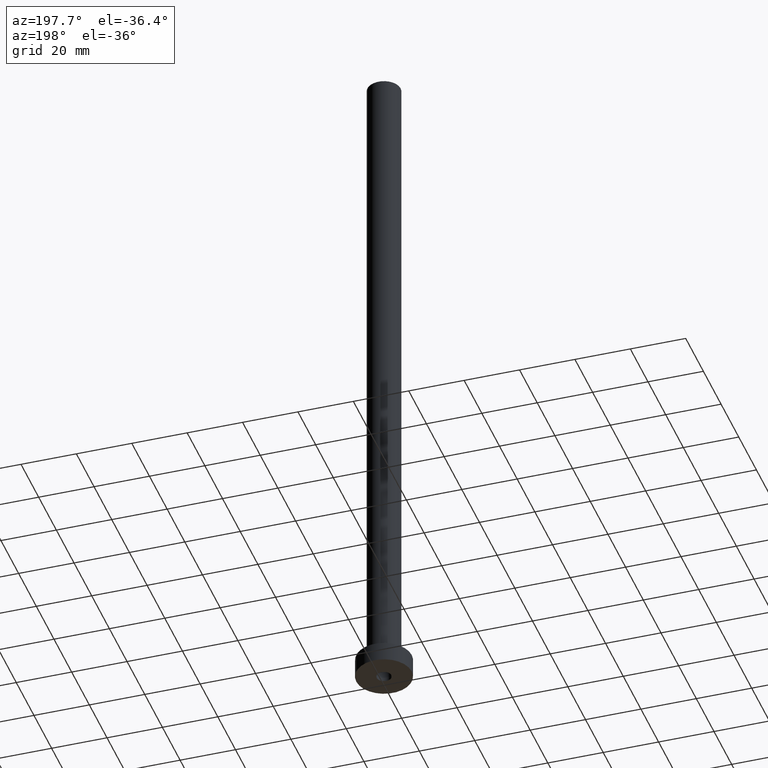
[diagram: clean part render]
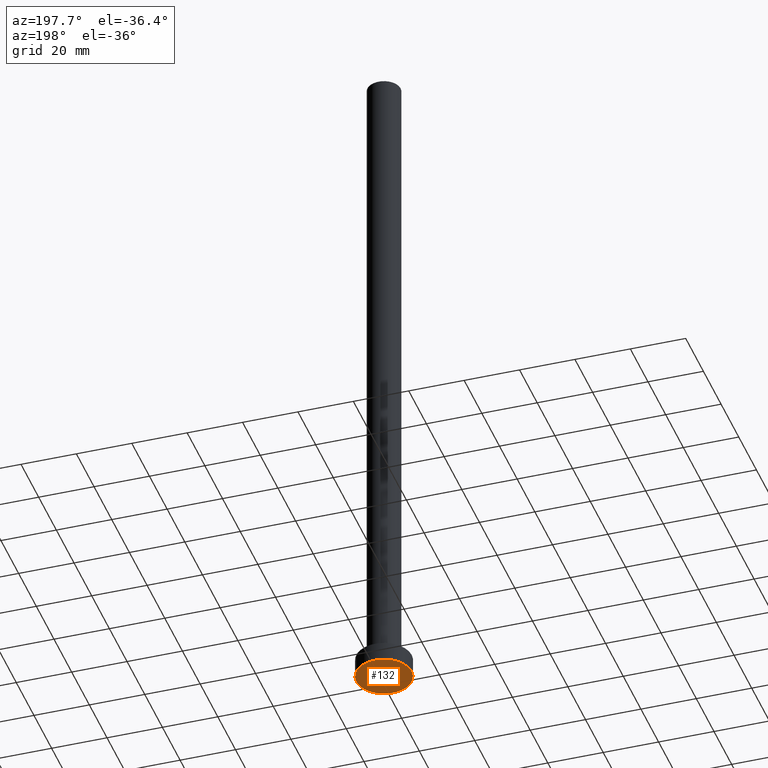
[diagram: same view with one face highlighted and labeled with its STEP entity id]
A machine part, auxiliary view. The second image highlights one B-rep face of the part: STEP entity #132.
In plain terms, the highlighted planar face has unit normal (0, 0, 1).
Its self-contained STEP definition (entity closure, byte-faithful):
#28 = AXIS2_PLACEMENT_3D ( 'NONE', #30, #174, #215 ) ;
#30 = CARTESIAN_POINT ( 'NONE',  ( 0.000000000000000000, 0.000000000000000000, 0.000000000000000000 ) ) ;
#33 = EDGE_LOOP ( 'NONE', ( #36, #125 ) ) ;
#36 = ORIENTED_EDGE ( 'NONE', *, *, #37, .F. ) ;
#37 = EDGE_CURVE ( 'NONE', #251, #265, #68, .T. ) ;
#43 = AXIS2_PLACEMENT_3D ( 'NONE', #455, #344, #268 ) ;
#47 = EDGE_LOOP ( 'NONE', ( #156, #219 ) ) ;
#55 = AXIS2_PLACEMENT_3D ( 'NONE', #73, #425, #75 ) ;
#60 = DIRECTION ( 'NONE',  ( 1.000000000000000000, 0.000000000000000000, 0.000000000000000000 ) ) ;
#63 = CIRCLE ( 'NONE', #317, 10.00000000000000000 ) ;
#68 = CIRCLE ( 'NONE', #43, 2.649999999999999911 ) ;
#69 = CARTESIAN_POINT ( 'NONE',  ( 2.649999999999999911, 3.245314017740485962E-16, 0.000000000000000000 ) ) ;
#73 = CARTESIAN_POINT ( 'NONE',  ( 0.000000000000000000, 0.000000000000000000, 0.000000000000000000 ) ) ;
#74 = EDGE_CURVE ( 'NONE', #265, #251, #112, .T. ) ;
#75 = DIRECTION ( 'NONE',  ( 1.000000000000000000, 0.000000000000000000, 0.000000000000000000 ) ) ;
#85 = CIRCLE ( 'NONE', #55, 10.00000000000000000 ) ;
#112 = CIRCLE ( 'NONE', #197, 2.649999999999999911 ) ;
#125 = ORIENTED_EDGE ( 'NONE', *, *, #74, .F. ) ;
#132 = ADVANCED_FACE ( 'NONE', ( #162, #419 ), #391, .F. ) ;
#133 = CARTESIAN_POINT ( 'NONE',  ( 0.000000000000000000, 0.000000000000000000, 0.000000000000000000 ) ) ;
#156 = ORIENTED_EDGE ( 'NONE', *, *, #444, .F. ) ;
#158 = CARTESIAN_POINT ( 'NONE',  ( -10.00000000000000000, 0.000000000000000000, 0.000000000000000000 ) ) ;
#162 = FACE_BOUND ( 'NONE', #33, .T. ) ;
#173 = CARTESIAN_POINT ( 'NONE',  ( 10.00000000000000000, 1.224646799147353256E-15, 0.000000000000000000 ) ) ;
#174 = DIRECTION ( 'NONE',  ( 0.000000000000000000, 0.000000000000000000, 1.000000000000000000 ) ) ;
#197 = AXIS2_PLACEMENT_3D ( 'NONE', #133, #272, #60 ) ;
#203 = CARTESIAN_POINT ( 'NONE',  ( -2.649999999999999911, 0.000000000000000000, 0.000000000000000000 ) ) ;
#206 = EDGE_CURVE ( 'NONE', #294, #433, #85, .T. ) ;
#215 = DIRECTION ( 'NONE',  ( 1.000000000000000000, 0.000000000000000000, -0.000000000000000000 ) ) ;
#219 = ORIENTED_EDGE ( 'NONE', *, *, #206, .F. ) ;
#251 = VERTEX_POINT ( 'NONE', #203 ) ;
#265 = VERTEX_POINT ( 'NONE', #69 ) ;
#268 = DIRECTION ( 'NONE',  ( 1.000000000000000000, 0.000000000000000000, 0.000000000000000000 ) ) ;
#272 = DIRECTION ( 'NONE',  ( -0.000000000000000000, -0.000000000000000000, -1.000000000000000000 ) ) ;
#294 = VERTEX_POINT ( 'NONE', #173 ) ;
#297 = DIRECTION ( 'NONE',  ( 0.000000000000000000, 0.000000000000000000, 1.000000000000000000 ) ) ;
#317 = AXIS2_PLACEMENT_3D ( 'NONE', #398, #297, #441 ) ;
#344 = DIRECTION ( 'NONE',  ( -0.000000000000000000, -0.000000000000000000, -1.000000000000000000 ) ) ;
#391 = PLANE ( 'NONE',  #28 ) ;
#398 = CARTESIAN_POINT ( 'NONE',  ( 0.000000000000000000, 0.000000000000000000, 0.000000000000000000 ) ) ;
#419 = FACE_OUTER_BOUND ( 'NONE', #47, .T. ) ;
#425 = DIRECTION ( 'NONE',  ( 0.000000000000000000, 0.000000000000000000, 1.000000000000000000 ) ) ;
#433 = VERTEX_POINT ( 'NONE', #158 ) ;
#441 = DIRECTION ( 'NONE',  ( 1.000000000000000000, 0.000000000000000000, 0.000000000000000000 ) ) ;
#444 = EDGE_CURVE ( 'NONE', #433, #294, #63, .T. ) ;
#455 = CARTESIAN_POINT ( 'NONE',  ( 0.000000000000000000, 0.000000000000000000, 0.000000000000000000 ) ) ;